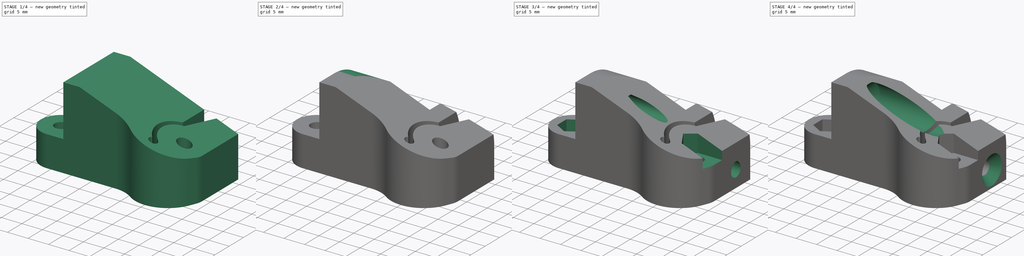
[diagram: build sequence overview — one tinted view per stage of 4, left to right]
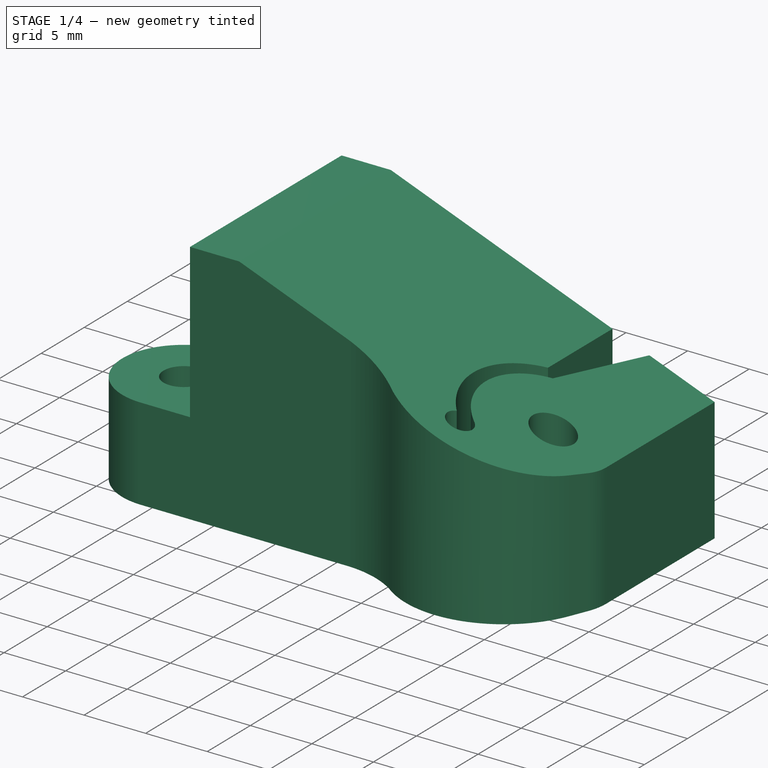
[diagram: stage 1 of 4 — iso view after this stage's code; geometry added in this stage tinted green]
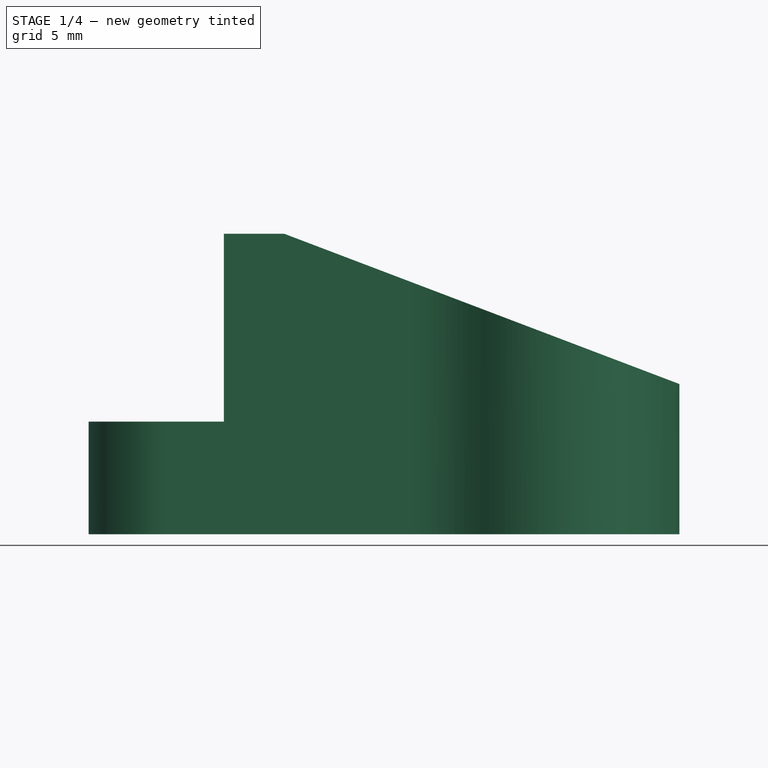
[diagram: stage 1 of 4 — front view after this stage's code; geometry added in this stage tinted green]
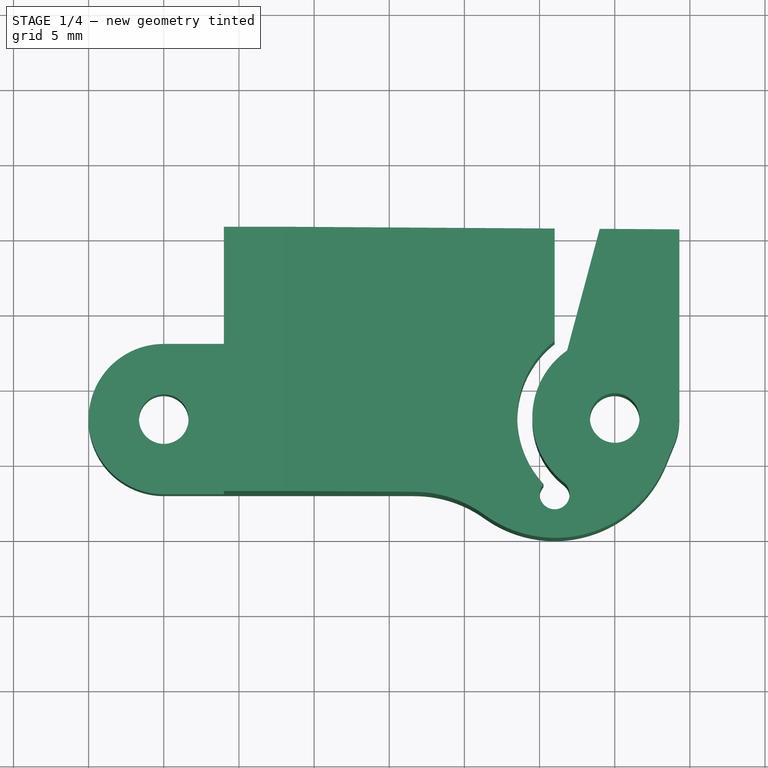
[diagram: stage 1 of 4 — top view after this stage's code; geometry added in this stage tinted green]
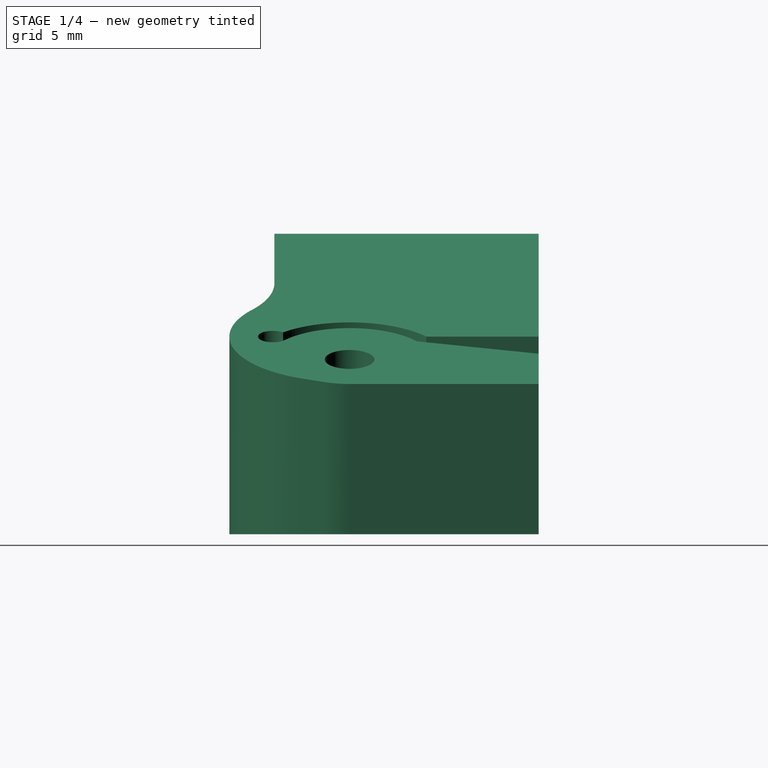
[diagram: stage 1 of 4 — right view after this stage's code; geometry added in this stage tinted green]
FCSTD DOCUMENT  (FreeCAD 0.17R13541 (Git))
Label: 14_407_z-runner-mount
License: All rights reserved
LicenseURL: http://en.wikipedia.org/wiki/All_rights_reserved
objects: Sketcher::SketchObject×13, PartDesign::Pocket×6, PartDesign::SubtractiveLoft×2, Spreadsheet::Sheet×1, PartDesign::Pad×1, PartDesign::Body×1
note: 32 computed .brp shape members not serialized (recipe doc carries the construction recipe); baked Part::Feature solids carry a one-line shape summary decoded from their .brp

FEATURE [Spreadsheet::Sheet] Spreadsheet  label="sheet1"
  cells = A1=max_x; B1(max_x)=39.299999999999997; C1=(min on stl = 0.35); A2=max_y; B2(max_y)=20.579999999999998; C2=(min on stl = 0.1); A3=max_z; B3(max_z)=20; C3=(min on stl = 0.2); A4=bearing_1_x; B4(bearing_1_x)=5; A5=bearing_1_y; B5(bearing_1_y)=8; A6=bearing_1_nuttrap_z; B6(bearing_1_nuttrap_z)=3; A7=bearing_2_x; B7(bearing_2_x)=35; A8=bearing_2_y; B8(bearing_2_y)=8; A9=bearing_2_nuttrap_z; B9(bearing_2_nuttrap_z)=8; A10=mount_bolt_1_y; B10(mount_bolt_1_y)=15.6; A11=mount_bolt_1_z; B11(mount_bolt_1_z)=4; A12=mount_bolt_2_y; B12(mount_bolt_2_y)=8; A13=mount_bolt_2_z; B13(mount_bolt_2_z)=16; A14=mount_bolt_2_countersink_dx; B14(mount_bolt_2_countersink_dx)=1.8; A15=mount_bolt_2_countersink_ix; B15(mount_bolt_2_countersink_ix)=14.65; C15=(major diameter location); A16=pinch_bolt_y; B16(pinch_bolt_y)=15.6; A17=pinch_bolt_z; B17(pinch_bolt_z)=4; A18=pinch_bolt_countersink_dx; B18(pinch_bolt_countersink_dx)=1.5; A19=pinch_bolt_countersink_ix; B19(pinch_bolt_countersink_ix)=39.299999999999997; A20=m3_clearance; B20(m3_clearance)=3.2999999999999998; A21=m3_nut_trap; B21(m3_nut_trap)=5.5999999999999996; A22=flex_cut_major_rad; B22(flex_cut_major_rad)=5.4000000000000004; C22=(on moving part, smaller rad); A23=flex_cut_stophole_dia; B23(flex_cut_stophole_dia)=2; A24=flex_cut_stophole_x; B24(flex_cut_stophole_x)=31; A25=flex_cut_gap; B25(flex_cut_gap)=1; A26=flex_cut_stop_x; B26(flex_cut_stop_x)=31.199999999999999; A27=flex_cut_foot_angle_to_vert; B27(flex_cut_foot_angle_to_vert)=13.800000000000001
FEATURE [Sketcher::SketchObject] Sketch
  MapMode = 5
  Support = -> [XY_Plane]
  expr: Constraints[60] = sheet1.flex_cut_stophole_x
  expr: Constraints[30] = sheet1.flex_cut_stophole_dia / 2
  expr: Constraints[21] = sheet1.max_y
  expr: Constraints[20] = sheet1.max_x
  expr: Constraints[5] = sheet1.bearing_2_y
  expr: Constraints[2] = sheet1.bearing_1_x
  expr: Constraints[4] = sheet1.bearing_1_y
  expr: Constraints[3] = sheet1.bearing_2_x
  expr: Constraints[1] = sheet1.m3_clearance / 2
  sketch-geometry (23):
    g0: Circle CenterX=5 CenterY=8 CenterZ=0 NormalX=0 NormalY=0 NormalZ=1 AngleXU=0 Radius=1.65
    g1: Circle CenterX=35 CenterY=8 CenterZ=0 NormalX=0 NormalY=0 NormalZ=1 AngleXU=0 Radius=1.65
    g2: ArcOfCircle CenterX=5 CenterY=8 CenterZ=0 NormalX=0 NormalY=0 NormalZ=1 AngleXU=0 Radius=5 StartAngle=1.5708 EndAngle=4.71239
    g3: LineSegment StartX=5 StartY=13 StartZ=0 EndX=9 EndY=13 EndZ=0
    g4: LineSegment StartX=9 StartY=13 StartZ=0 EndX=9 EndY=20.58 EndZ=0
    g5: LineSegment StartX=9 StartY=20.58 StartZ=0 EndX=31 EndY=20.58 EndZ=0
    g6: LineSegment StartX=31 StartY=20.58 StartZ=0 EndX=31 EndY=13.1 EndZ=0
    g7: LineSegment StartX=5 StartY=3 StartZ=0 EndX=21.6726 EndY=3 EndZ=0
    g8: LineSegment StartX=31.8325 StartY=12.4737 StartZ=0 EndX=34 EndY=20.58 EndZ=0
    g9: LineSegment StartX=34 StartY=20.58 StartZ=0 EndX=39.3 EndY=20.58 EndZ=0
    g10: LineSegment StartX=39.3 StartY=20.58 StartZ=0 EndX=39.3 EndY=8 EndZ=0
    g11: ArcOfCircle CenterX=35 CenterY=8 CenterZ=0 NormalX=0 NormalY=0 NormalZ=1 AngleXU=0 Radius=5.48151 StartAngle=2.18688 EndAngle=4.04729
    g12: ArcOfCircle CenterX=31 CenterY=2.9 CenterZ=0 NormalX=0 NormalY=0 NormalZ=1 AngleXU=0 Radius=1 StartAngle=2.39927 EndAngle=7.18888
    g13: ArcOfCircle CenterX=35 CenterY=8 CenterZ=0 NormalX=0 NormalY=0 NormalZ=1 AngleXU=0 Radius=6.48151 StartAngle=2.2359 EndAngle=3.89285
    g14: ArcOfCircle CenterX=21.6726 CenterY=-5 CenterZ=0 NormalX=0 NormalY=0 NormalZ=1 AngleXU=0 Radius=8 StartAngle=0.948428 EndAngle=1.5708
    g15: ArcOfCircle CenterX=31 CenterY=8 CenterZ=0 NormalX=0 NormalY=0 NormalZ=1 AngleXU=0 Radius=8 StartAngle=4.09002 EndAngle=5.89342
    g16: ArcOfCircle CenterX=35 CenterY=8 CenterZ=0 NormalX=0 NormalY=0 NormalZ=1 AngleXU=0 Radius=4.3 StartAngle=5.89342 EndAngle=6.28319
    g17: LineSegment StartX=38.4 StartY=4.96026 StartZ=0 EndX=38.9775 EndY=6.36614 EndZ=0
    g18: LineSegment [constr] StartX=31 StartY=0 StartZ=0 EndX=31 EndY=30 EndZ=0
    g19: LineSegment [constr] StartX=35 StartY=8 StartZ=0 EndX=0 EndY=8 EndZ=0
    g20: GeomPoint X=28.5185 Y=8 Z=0
    g21: GeomPoint X=29.5185 Y=8 Z=0
    g22: LineSegment [constr] StartX=31 StartY=13.1 StartZ=0 EndX=32 EndY=13.1 EndZ=0
  constraints (63):
    c: Equal(g0,g1)
    c: Radius(g0) = 1.65
    c: DistanceX(g-2,g0) = 5
    c: DistanceX(g-2,g1) = 35
    c: DistanceY(g-1,g0) = 8
    c: DistanceY(g-1,g1) = 8
    c: Coincident(g2,g0)
    c: Tangent(g2,g-2)
    c: Coincident(g3,g4)
    c: Coincident(g4,g5)
    c: Coincident(g5,g6)
    c: Horizontal(g7)
    c: Horizontal(g3)
    c: Horizontal(g5)
    c: Tangent(g2,g3) = 1.5708
    c: Tangent(g2,g7) = -1.5708
    c: Coincident(g8,g9)
    c: Coincident(g9,g10)
    c: Horizontal(g9)
    c: Vertical(g10)
    c: DistanceX(g-2,g9) = 39.3
    c: DistanceY(g-1,g4) = 20.58
    c: PointOnObject(g8,g5)
    c: Coincident(g13,g11)
    c: Coincident(g13,g1)
    c: Coincident(g8,g11)
    c: Coincident(g13,g6)
    c: Coincident(g12,g13)
    c: Tangent(g12,g11) = 1.5708
    c: Tangent(g7,g14) = 1.5708
    c: Radius(g12) = 1
    c: Tangent(g15,g14) = 1.5708
    c: Tangent(g15,g17) = -1.5708
    c: Tangent(g17,g16) = -1.5708
    c: Tangent(g16,g10) = 1.5708
    c: Coincident(g16,g1)
    c: Tangent(g15,g-1)
    c: PointOnObject(g18,g-1)
    c: Vertical(g18)
    c: Distance(g18) = 30
    c: PointOnObject(g15,g18)
    c: PointOnObject(g12,g18)
    c: Coincident(g19,g1)
    c: Horizontal(g19)
    c: PointOnObject(g19,g-2)
    c: PointOnObject(g15,g19)
    c: Vertical(g6)
    c: PointOnObject(g5,g18)
    c: PointOnObject(g20,g19)
    c: PointOnObject(g20,g13)
    c: PointOnObject(g21,g19)
    c: PointOnObject(g21,g11)
    c: Distance(g20,g21) = 1
    c: Coincident(g22,g6)
    c: Horizontal(g22)
    c: PointOnObject(g22,g8)
    c: Distance(g22) = 1
    c: Distance(g5,g8) = 3
    c: DistanceX(g-2,g4) = 9
    c: Vertical(g4)
    c: DistanceX(g-2,g18) = 31
    c: DistanceY(g-1,g12) = 2.9
    c: Equal(g14,g15)
FEATURE [PartDesign::Pad] Pad
  Length = 20
  Length2 = 100
  Profile = -> Sketch
  Type = 0
  expr: Length = sheet1.max_z
FEATURE [Sketcher::SketchObject] Sketch001
  MapMode = 5
  Placement = pos=(0,0,0) rot=(1,0,0;1.5708rad)
  Support = -> [XZ_Plane]
  expr: Constraints[19] = sheet1.max_z + 1
  expr: Constraints[17] = sheet1.max_x
  expr: Constraints[16] = sheet1.max_z
  sketch-geometry (8):
    g0: LineSegment StartX=-1 StartY=7.5 StartZ=0 EndX=9 EndY=7.5 EndZ=0
    g1: LineSegment StartX=9 StartY=7.5 StartZ=0 EndX=9 EndY=20 EndZ=0
    g2: LineSegment StartX=9 StartY=20 StartZ=0 EndX=13 EndY=20 EndZ=0
    g3: LineSegment StartX=13 StartY=20 StartZ=0 EndX=39.3 EndY=10 EndZ=0
    g4: LineSegment StartX=39.3 StartY=10 StartZ=0 EndX=40.3 EndY=10 EndZ=0
    g5: LineSegment StartX=40.3 StartY=10 StartZ=0 EndX=40.3 EndY=21 EndZ=0
    g6: LineSegment StartX=40.3 StartY=21 StartZ=0 EndX=-1 EndY=21 EndZ=0
    g7: LineSegment StartX=-1 StartY=21 StartZ=0 EndX=-1 EndY=7.5 EndZ=0
  constraints (24):
    c: Coincident(g0,g1)
    c: Coincident(g1,g2)
    c: Coincident(g2,g3)
    c: Coincident(g3,g4)
    c: Horizontal(g4)
    c: Coincident(g4,g5)
    c: Vertical(g5)
    c: Coincident(g5,g6)
    c: Horizontal(g6)
    c: Coincident(g6,g7)
    c: Coincident(g0,g7)
    c: Vertical(g7)
    c: Vertical(g1)
    c: Horizontal(g0)
    c: Horizontal(g2)
    c: DistanceX(g-2,g0) = -1
    c: DistanceY(g-1,g1) = 20
    c: DistanceX(g-2,g3) = 39.3
    c: Distance(g4) = 1
    c: DistanceY(g-1,g6) = 21
    c: DistanceX(g-2,g1) = 9
    c: DistanceX(g-2,g2) = 13
    c: DistanceY(g-1,g0) = 7.5
    c: DistanceY(g-1,g4) = 10
FEATURE [PartDesign::Pocket] Pocket
  BaseFeature = -> Pad
  Length = 5
  Length2 = 100
  Profile = -> Sketch001
  Type = 1
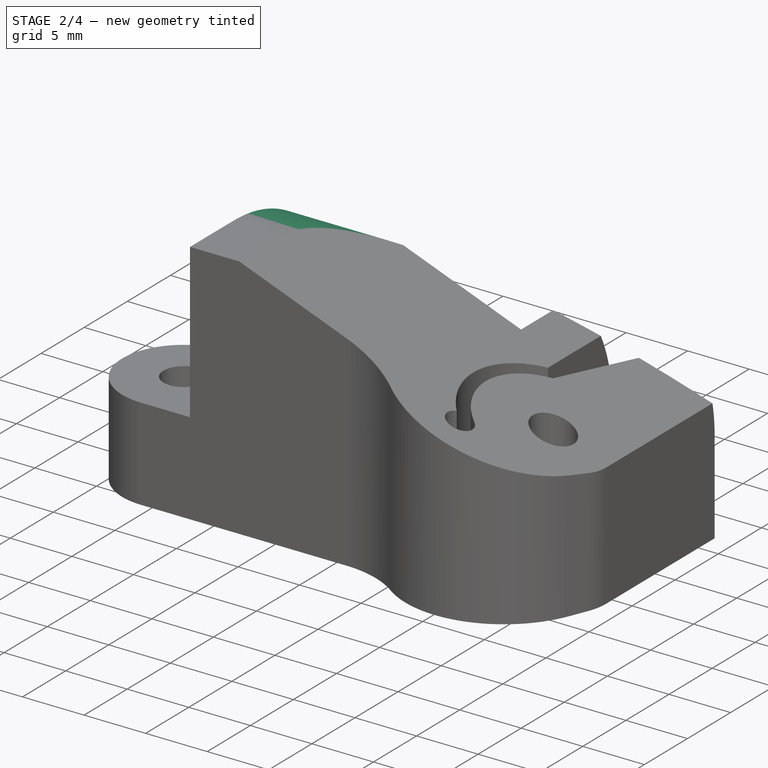
[diagram: stage 2 of 4 — iso view after this stage's code; geometry added in this stage tinted green]
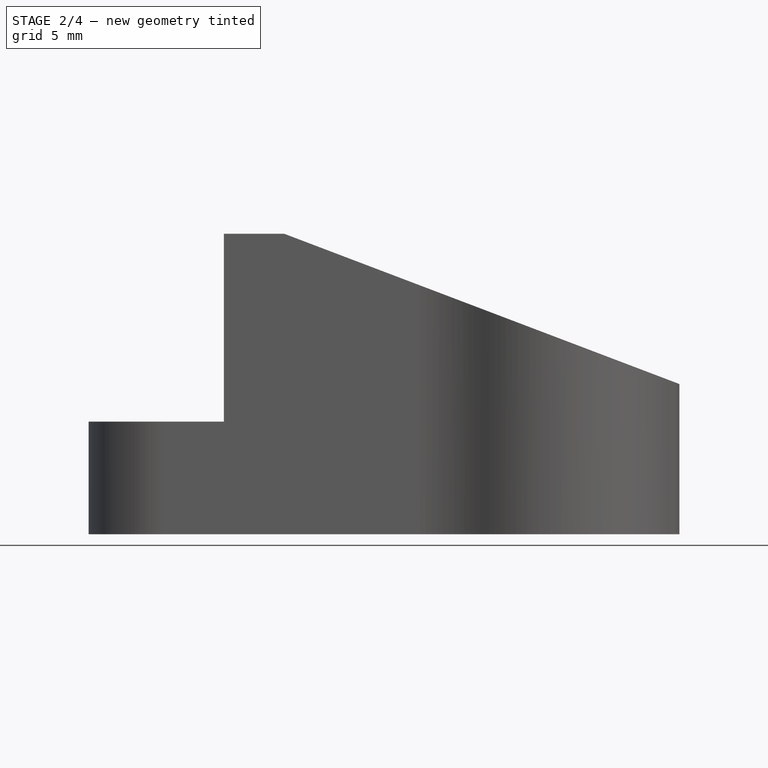
[diagram: stage 2 of 4 — front view after this stage's code; geometry added in this stage tinted green]
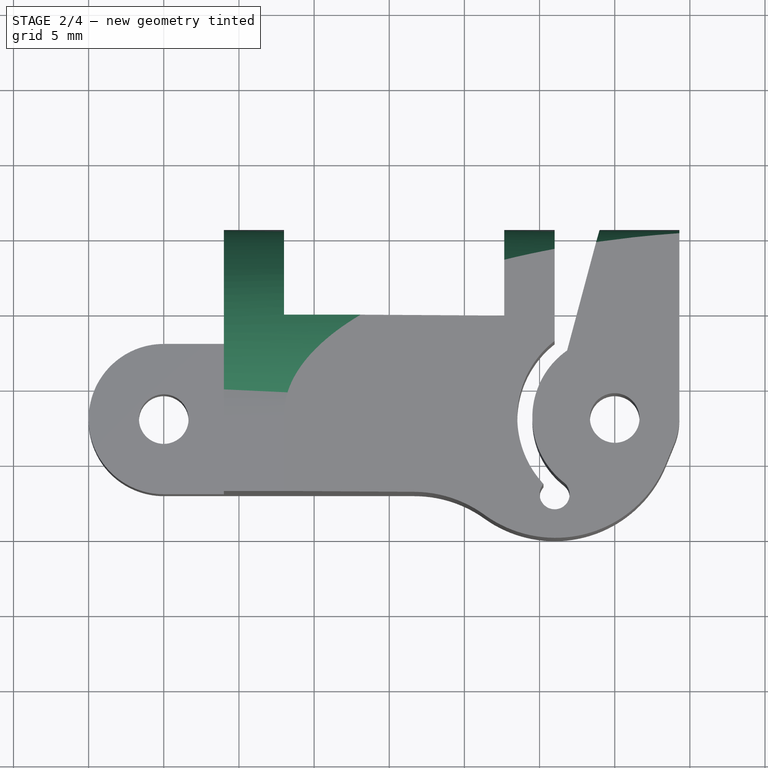
[diagram: stage 2 of 4 — top view after this stage's code; geometry added in this stage tinted green]
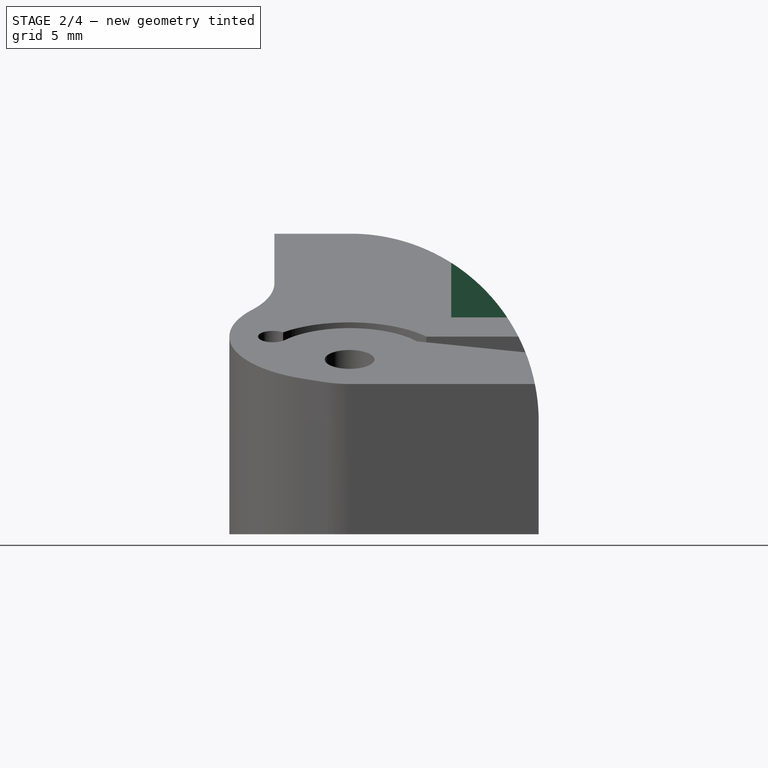
[diagram: stage 2 of 4 — right view after this stage's code; geometry added in this stage tinted green]
FEATURE [Sketcher::SketchObject] Sketch002
  MapMode = 5
  Placement = pos=(0,0,0) rot=(0.57735,0.57735,0.57735;2.0944rad)
  Support = -> [YZ_Plane]
  expr: Constraints[19] = sheet1.max_y + 1
  expr: Constraints[18] = sheet1.max_z + 1
  expr: Constraints[17] = sheet1.max_z
  expr: Constraints[1] = sheet1.max_y
  sketch-geometry (7):
    g0: ArcOfCircle CenterX=8.08 CenterY=7.5 CenterZ=0 NormalX=0 NormalY=0 NormalZ=1 AngleXU=0 Radius=12.5 StartAngle=0 EndAngle=1.5708
    g1: LineSegment StartX=20.58 StartY=7.5 StartZ=0 EndX=20.58 EndY=0 EndZ=0
    g2: LineSegment StartX=20.58 StartY=0 StartZ=0 EndX=21.58 EndY=0 EndZ=0
    g3: LineSegment StartX=21.58 StartY=0 StartZ=0 EndX=21.58 EndY=21 EndZ=0
    g4: LineSegment StartX=21.58 StartY=21 StartZ=0 EndX=0 EndY=21 EndZ=0
    g5: LineSegment StartX=0 StartY=21 StartZ=0 EndX=0 EndY=20 EndZ=0
    g6: LineSegment StartX=0 StartY=20 StartZ=0 EndX=8.08 EndY=20 EndZ=0
  constraints (20):
    c: DistanceY(g-1,g0) = 7.5
    c: DistanceX(g-2,g0) = 20.58
    c: PointOnObject(g1,g-1)
    c: Coincident(g1,g2)
    c: PointOnObject(g2,g-1)
    c: Coincident(g2,g3)
    c: Vertical(g3)
    c: Coincident(g3,g4)
    c: Horizontal(g4)
    c: Coincident(g4,g5)
    c: Coincident(g5,g6)
    c: Horizontal(g6)
    c: Vertical(g5)
    c: Vertical(g1)
    c: PointOnObject(g5,g-2)
    c: Tangent(g1,g0) = 1.5708
    c: Tangent(g6,g0) = 1.5708
    c: DistanceY(g-1,g5) = 20
    c: DistanceY(g-1,g4) = 21
    c: DistanceX(g-2,g2) = 21.58
FEATURE [PartDesign::Pocket] Pocket001
  BaseFeature = -> Pocket
  Length = 5
  Length2 = 100
  Profile = -> Sketch002
  Reversed = true
  Type = 1
FEATURE [Sketcher::SketchObject] Sketch003
  AttachmentOffset = pos=(0,0,13) rot=(0,0,1;0rad)
  MapMode = 5
  Placement = pos=(13,-1e-12,1e-12) rot=(0.57735,0.57735,0.57735;2.0944rad)
  Support = -> [YZ_Plane]
  expr: Constraints[18] = sheet1.m3_nut_trap
  expr: Constraints[36] = sheet1.mount_bolt_1_z
  expr: Constraints[17] = sheet1.mount_bolt_1_y
  expr: Constraints[35] = sheet1.max_y + 1
  expr: Constraints[33] = sheet1.max_z + 1
  sketch-geometry (13):
    g0: LineSegment [constr] StartX=17.8862 StartY=6.28619 StartZ=0 EndX=14.7632 EndY=7.12299 EndZ=0
    g1: LineSegment [constr] StartX=14.7632 StartY=7.12299 StartZ=0 EndX=12.477 EndY=4.8368 EndZ=0
    g2: LineSegment [constr] StartX=12.477 StartY=4.8368 StartZ=0 EndX=13.3138 EndY=1.71381 EndZ=0
    g3: LineSegment [constr] StartX=13.3138 StartY=1.71381 StartZ=0 EndX=16.4368 EndY=0.877006 EndZ=0
    g4: LineSegment [constr] StartX=16.4368 StartY=0.877006 StartZ=0 EndX=18.723 EndY=3.1632 EndZ=0
    g5: LineSegment [constr] StartX=18.723 StartY=3.1632 StartZ=0 EndX=17.8862 EndY=6.28619 EndZ=0
    g6: Circle [constr] CenterX=15.6 CenterY=4 CenterZ=0 NormalX=0 NormalY=0 NormalZ=1 AngleXU=0 Radius=3.23316
    g7: LineSegment StartX=12.477 StartY=4.8368 StartZ=0 EndX=14.041 EndY=-1 EndZ=0
    g8: LineSegment StartX=12.477 StartY=4.8368 StartZ=0 EndX=14.7632 EndY=7.12299 EndZ=0
    g9: LineSegment StartX=14.7632 StartY=7.12299 StartZ=0 EndX=14.7632 EndY=21 EndZ=0
    g10: LineSegment StartX=14.7632 StartY=21 StartZ=0 EndX=21.58 EndY=21 EndZ=0
    g11: LineSegment StartX=21.58 StartY=21 StartZ=0 EndX=21.58 EndY=-1 EndZ=0
    g12: LineSegment StartX=21.58 StartY=-1 StartZ=0 EndX=14.041 EndY=-1 EndZ=0
  constraints (33):
    c: Coincident(g0,g1)
    c: Coincident(g1,g2)
    c: Coincident(g2,g3)
    c: Coincident(g3,g4)
    c: Coincident(g4,g5)
    c: Coincident(g5,g0)
    c: Equal(g0, g1-g5) x5
    c: PointOnObject(g0,g6)
    c: PointOnObject(g1,g6)
    c: PointOnObject(g2,g6)
    c: PointOnObject(g3,g6)
    c: PointOnObject(g4,g6)
    c: PointOnObject(g5,g6)
    c: DistanceX(g-2,g6) = 15.6
    c: Distance(g0,g4) = 5.6
    c: Angle(g1,g-1) = 2.35619
    c: Coincident(g8,g9)
    c: Coincident(g9,g10)
    c: Coincident(g10,g11)
    c: Coincident(g11,g12)
    c: Horizontal(g12)
    c: Horizontal(g10)
    c: Vertical(g9)
    c: Vertical(g11)
    c: Coincident(g12,g7)
    c: Coincident(g7,g1)
    c: Coincident(g8,g1)
    c: PointOnObject(g7,g2)
    c: DistanceY(g-1,g11) = -1
    c: DistanceY(g-1,g10) = 21
    c: Coincident(g8,g0)
    c: DistanceX(g-2,g10) = 21.58
    c: DistanceY(g-1,g6) = 4
FEATURE [PartDesign::Pocket] Pocket002
  BaseFeature = -> Pocket001
  Length = 14.65
  Length2 = 100
  Profile = -> Sketch003
  Reversed = true
  Type = 0
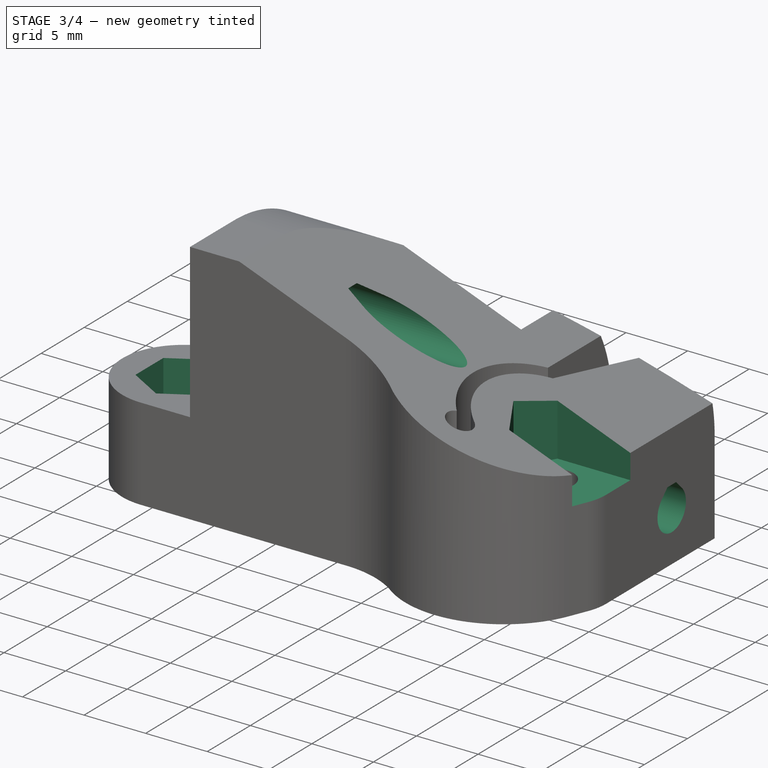
[diagram: stage 3 of 4 — iso view after this stage's code; geometry added in this stage tinted green]
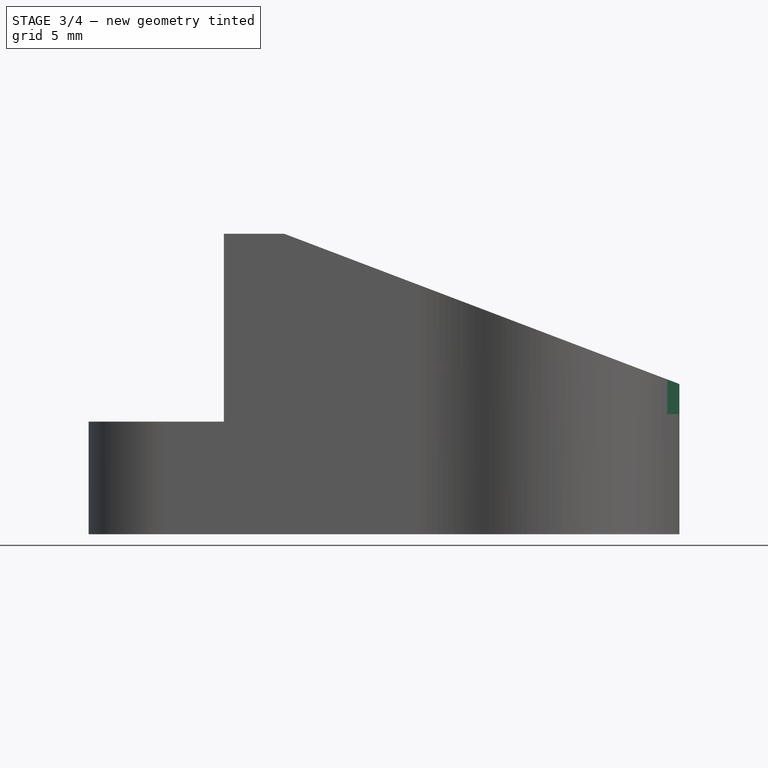
[diagram: stage 3 of 4 — front view after this stage's code; geometry added in this stage tinted green]
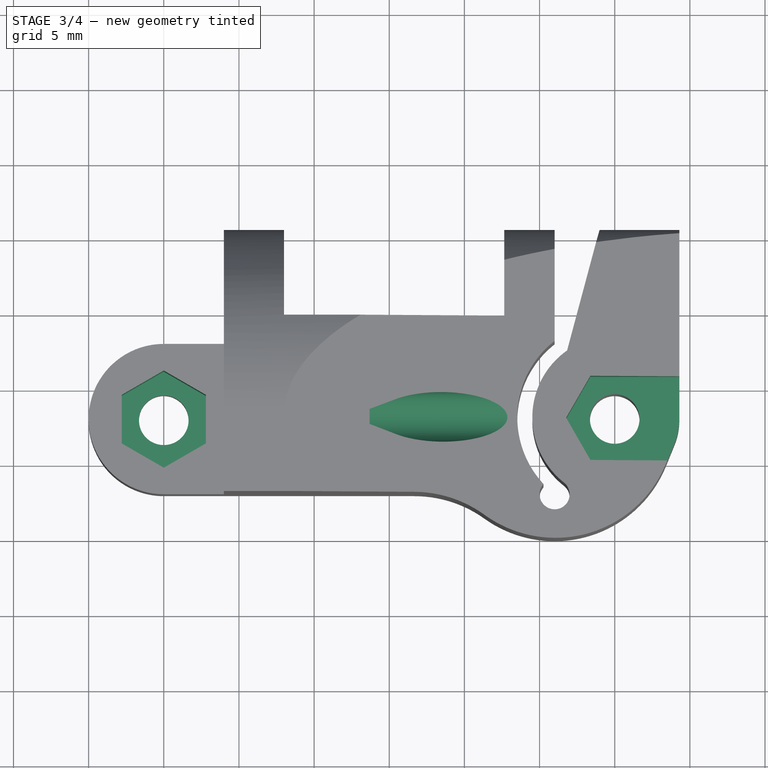
[diagram: stage 3 of 4 — top view after this stage's code; geometry added in this stage tinted green]
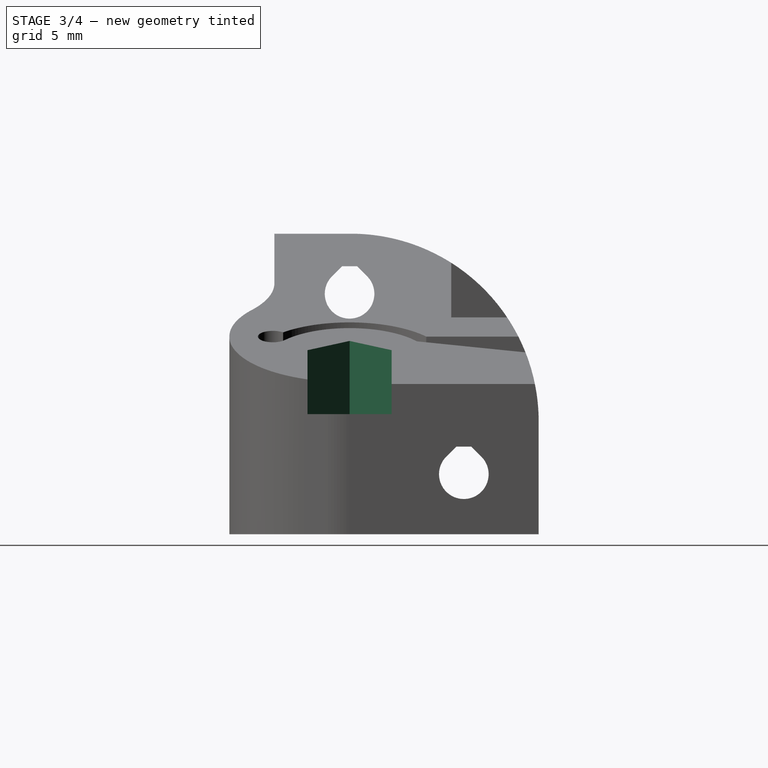
[diagram: stage 3 of 4 — right view after this stage's code; geometry added in this stage tinted green]
FEATURE [Sketcher::SketchObject] Sketch004
  AttachmentOffset = pos=(0,0,3) rot=(0,0,1;0rad)
  MapMode = 5
  Placement = pos=(0,0,3) rot=(0,0,1;0rad)
  Support = -> [XY_Plane]
  expr: AttachmentOffset.Base.z = sheet1.bearing_1_nuttrap_z
  expr: Constraints[20] = sheet1.bearing_1_y
  expr: Constraints[19] = sheet1.bearing_1_x
  expr: Constraints[18] = sheet1.m3_nut_trap
  sketch-geometry (7):
    g0: LineSegment StartX=2.2 StartY=9.61658 StartZ=0 EndX=2.2 EndY=6.38342 EndZ=0
    g1: LineSegment StartX=2.2 StartY=6.38342 StartZ=0 EndX=5 EndY=4.76684 EndZ=0
    g2: LineSegment StartX=5 StartY=4.76684 StartZ=0 EndX=7.8 EndY=6.38342 EndZ=0
    g3: LineSegment StartX=7.8 StartY=6.38342 StartZ=0 EndX=7.8 EndY=9.61658 EndZ=0
    g4: LineSegment StartX=7.8 StartY=9.61658 StartZ=0 EndX=5 EndY=11.2332 EndZ=0
    g5: LineSegment StartX=5 StartY=11.2332 StartZ=0 EndX=2.2 EndY=9.61658 EndZ=0
    g6: Circle [constr] CenterX=5 CenterY=8 CenterZ=0 NormalX=0 NormalY=0 NormalZ=1 AngleXU=0 Radius=3.23316
  constraints (17):
    c: Coincident(g0,g1)
    c: Coincident(g1,g2)
    c: Coincident(g2,g3)
    c: Coincident(g3,g4)
    c: Coincident(g4,g5)
    c: Coincident(g5,g0)
    c: Equal(g0, g1-g5) x5
    c: PointOnObject(g0,g6)
    c: PointOnObject(g1,g6)
    c: PointOnObject(g2,g6)
    c: PointOnObject(g3,g6)
    c: PointOnObject(g4,g6)
    c: PointOnObject(g5,g6)
    c: Vertical(g0)
    c: Distance(g3,g0) = 5.6
    c: DistanceX(g-2,g6) = 5
    c: DistanceY(g-1,g6) = 8
FEATURE [PartDesign::Pocket] Pocket003
  BaseFeature = -> Pocket002
  Length = 5
  Length2 = 100
  Profile = -> Sketch004
  Reversed = true
  Type = 1
FEATURE [Sketcher::SketchObject] Sketch005
  AttachmentOffset = pos=(0,0,8) rot=(0,0,1;0rad)
  MapMode = 5
  Placement = pos=(0,0,8) rot=(0,0,1;0rad)
  Support = -> [XY_Plane]
  expr: AttachmentOffset.Base.z = sheet1.bearing_2_nuttrap_z
  expr: Constraints[28] = sheet1.max_x + 1
  expr: Constraints[20] = sheet1.m3_nut_trap
  expr: Constraints[18] = sheet1.bearing_2_y
  expr: Constraints[17] = sheet1.bearing_2_x
  sketch-geometry (10):
    g0: LineSegment [constr] StartX=36.6166 StartY=10.8 StartZ=0 EndX=33.3834 EndY=10.8 EndZ=0
    g1: LineSegment StartX=33.3834 StartY=10.8 StartZ=0 EndX=31.7668 EndY=8 EndZ=0
    g2: LineSegment StartX=31.7668 StartY=8 StartZ=0 EndX=33.3834 EndY=5.2 EndZ=0
    g3: LineSegment [constr] StartX=33.3834 StartY=5.2 StartZ=0 EndX=36.6166 EndY=5.2 EndZ=0
    g4: LineSegment [constr] StartX=36.6166 StartY=5.2 StartZ=0 EndX=38.2332 EndY=8 EndZ=0
    g5: LineSegment [constr] StartX=38.2332 StartY=8 StartZ=0 EndX=36.6166 EndY=10.8 EndZ=0
    g6: Circle [constr] CenterX=35 CenterY=8 CenterZ=0 NormalX=0 NormalY=0 NormalZ=1 AngleXU=0 Radius=3.23316
    g7: LineSegment StartX=33.3834 StartY=10.8 StartZ=0 EndX=40.3 EndY=10.8 EndZ=0
    g8: LineSegment StartX=40.3 StartY=10.8 StartZ=0 EndX=40.3 EndY=5.2 EndZ=0
    g9: LineSegment StartX=40.3 StartY=5.2 StartZ=0 EndX=33.3834 EndY=5.2 EndZ=0
  constraints (25):
    c: Coincident(g0,g1)
    c: Coincident(g1,g2)
    c: Coincident(g2,g3)
    c: Coincident(g3,g4)
    c: Coincident(g4,g5)
    c: Coincident(g5,g0)
    c: Equal(g0, g1-g5) x5
    c: PointOnObject(g0,g6)
    c: PointOnObject(g1,g6)
    c: PointOnObject(g2,g6)
    c: PointOnObject(g3,g6)
    c: PointOnObject(g4,g6)
    c: PointOnObject(g5,g6)
    c: DistanceX(g-2,g6) = 35
    c: DistanceY(g-1,g6) = 8
    c: Horizontal(g0)
    c: Distance(g0,g3) = 5.6
    c: Coincident(g7,g8)
    c: Coincident(g8,g9)
    c: Coincident(g7,g0)
    c: Coincident(g9,g2)
    c: Horizontal(g7)
    c: Horizontal(g9)
    c: Vertical(g8)
    c: DistanceX(g-2,g7) = 40.3
FEATURE [PartDesign::Pocket] Pocket004
  BaseFeature = -> Pocket003
  Length = 5
  Length2 = 100
  Profile = -> Sketch005
  Reversed = true
  Type = 1
FEATURE [Sketcher::SketchObject] Sketch006
  MapMode = 5
  Placement = pos=(0,0,0) rot=(0.57735,0.57735,0.57735;2.0944rad)
  Support = -> [YZ_Plane]
  expr: Constraints[21] = sheet1.mount_bolt_1_z
  expr: Constraints[20] = sheet1.mount_bolt_1_y
  expr: Constraints[19] = sheet1.mount_bolt_2_z
  expr: Constraints[18] = sheet1.mount_bolt_2_y
  expr: Constraints[14] = sheet1.m3_clearance / 2
  sketch-geometry (8):
    g0: ArcOfCircle CenterX=8 CenterY=16 CenterZ=0 NormalX=0 NormalY=0 NormalZ=1 AngleXU=0 Radius=1.65 StartAngle=2.35619 EndAngle=7.06858
    g1: ArcOfCircle CenterX=15.6 CenterY=4 CenterZ=0 NormalX=0 NormalY=0 NormalZ=1 AngleXU=0 Radius=1.65 StartAngle=2.35619 EndAngle=7.06858
    g2: LineSegment StartX=6.83327 StartY=17.1667 StartZ=0 EndX=7.5 EndY=17.8335 EndZ=0
    g3: LineSegment StartX=7.5 StartY=17.8335 StartZ=0 EndX=8.5 EndY=17.8335 EndZ=0
    g4: LineSegment StartX=8.5 StartY=17.8335 StartZ=0 EndX=9.16673 EndY=17.1667 EndZ=0
    g5: LineSegment StartX=14.4333 StartY=5.16673 StartZ=0 EndX=15.1 EndY=5.83345 EndZ=0
    g6: LineSegment StartX=15.1 StartY=5.83345 StartZ=0 EndX=16.1 EndY=5.83345 EndZ=0
    g7: LineSegment StartX=16.1 StartY=5.83345 StartZ=0 EndX=16.7667 EndY=5.16673 EndZ=0
  constraints (22):
    c: Coincident(g2,g3)
    c: Coincident(g3,g4)
    c: Coincident(g5,g6)
    c: Coincident(g6,g7)
    c: Tangent(g0,g2) = 1.5708
    c: Tangent(g0,g4) = 1.5708
    c: Tangent(g1,g5) = 1.5708
    c: Tangent(g1,g7) = 1.5708
    c: Horizontal(g3)
    c: Horizontal(g6)
    c: Equal(g2,g4)
    c: Equal(g4,g5)
    c: Equal(g5,g7)
    c: Equal(g3,g6)
    c: Radius(g0) = 1.65
    c: Equal(g0,g1)
    c: Distance(g2,g3) = 1
    c: Angle(g2,g3) = 2.35619
    c: DistanceX(g-2,g0) = 8
    c: DistanceY(g-1,g0) = 16
    c: DistanceX(g-2,g1) = 15.6
    c: DistanceY(g-1,g1) = 4
FEATURE [PartDesign::Pocket] Pocket005
  BaseFeature = -> Pocket004
  Length = 5
  Length2 = 100
  Profile = -> Sketch006
  Reversed = true
  Type = 1
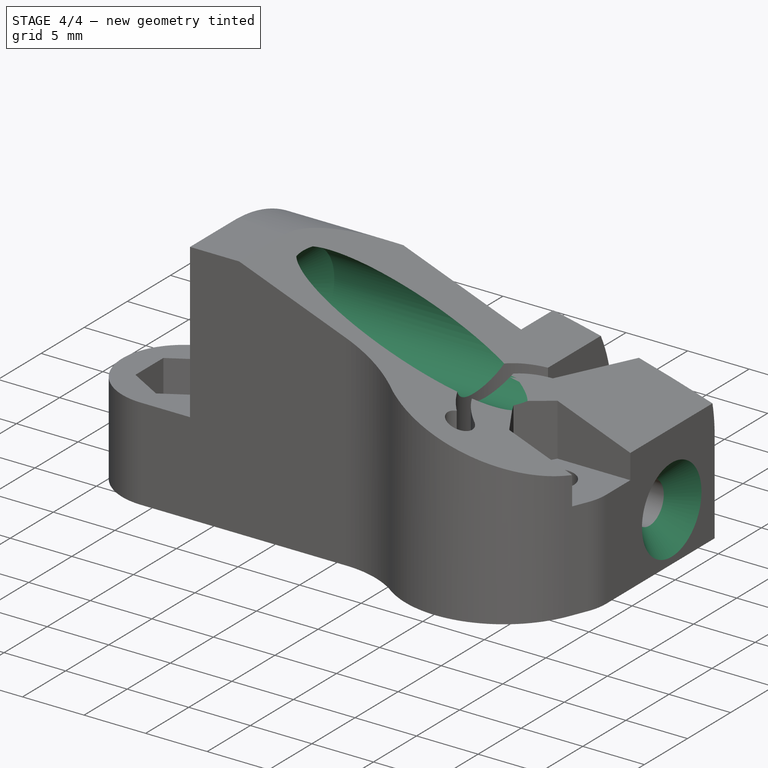
[diagram: stage 4 of 4 — iso view after this stage's code; geometry added in this stage tinted green]
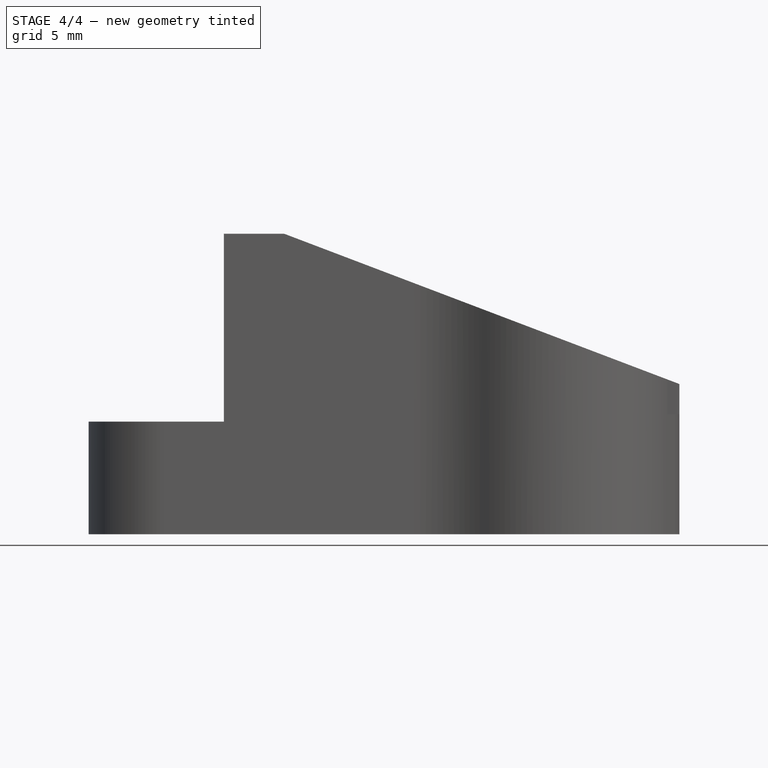
[diagram: stage 4 of 4 — front view after this stage's code; geometry added in this stage tinted green]
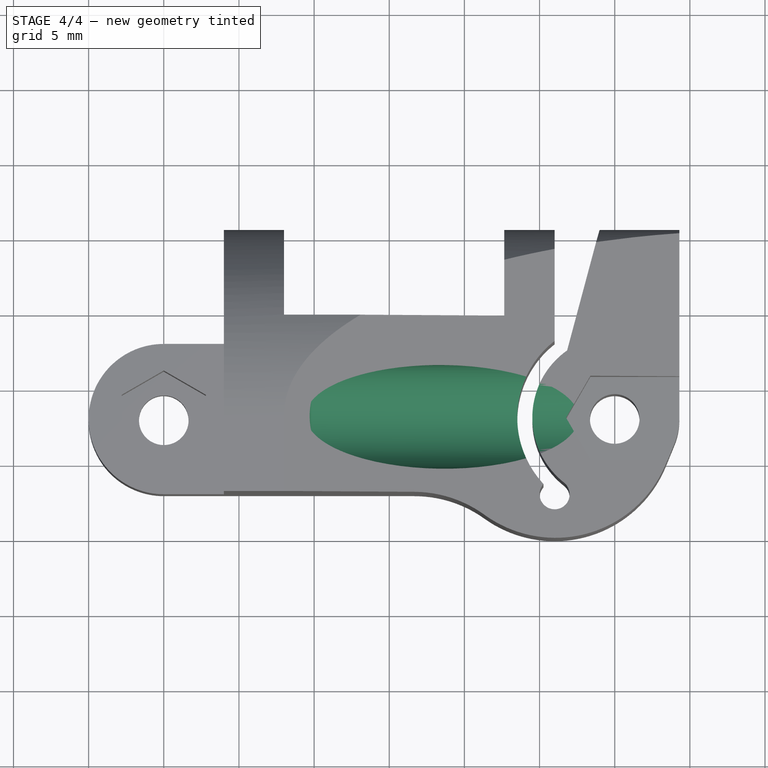
[diagram: stage 4 of 4 — top view after this stage's code; geometry added in this stage tinted green]
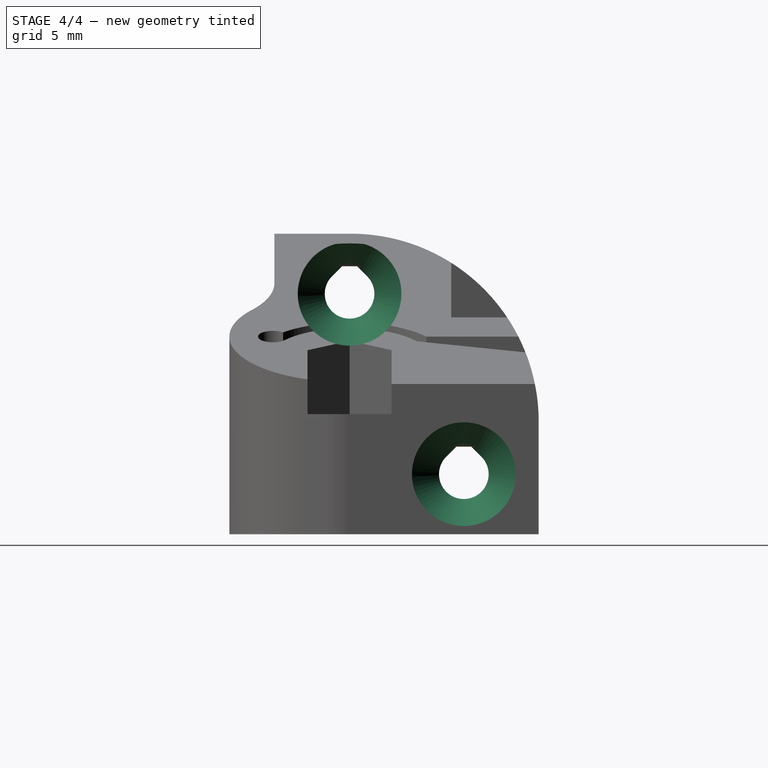
[diagram: stage 4 of 4 — right view after this stage's code; geometry added in this stage tinted green]
FEATURE [Sketcher::SketchObject] Sketch007
  AttachmentOffset = pos=(0,0,13) rot=(0,0,1;0rad)
  MapMode = 5
  Placement = pos=(13,-1e-12,1e-12) rot=(0.57735,0.57735,0.57735;2.0944rad)
  Support = -> [YZ_Plane]
  expr: Constraints[12] = sheet1.m3_clearance / 2
  expr: Constraints[9] = sheet1.mount_bolt_2_y
  expr: Constraints[10] = sheet1.mount_bolt_2_z
  expr: Constraints[6] = sheet1.m3_clearance / 2
  sketch-geometry (5):
    g0: ArcOfCircle [constr] CenterX=8 CenterY=16 CenterZ=0 NormalX=0 NormalY=0 NormalZ=1 AngleXU=0 Radius=1.65 StartAngle=2.35619 EndAngle=7.06858
    g1: LineSegment [constr] StartX=6.83327 StartY=17.1667 StartZ=0 EndX=7.5 EndY=17.8335 EndZ=0
    g2: LineSegment [constr] StartX=7.5 StartY=17.8335 StartZ=0 EndX=8.5 EndY=17.8335 EndZ=0
    g3: LineSegment [constr] StartX=8.5 StartY=17.8335 StartZ=0 EndX=9.16673 EndY=17.1667 EndZ=0
    g4: Circle CenterX=8 CenterY=16 CenterZ=0 NormalX=0 NormalY=0 NormalZ=1 AngleXU=0 Radius=1.65
  constraints (13):
    c: Coincident(g1,g2)
    c: Coincident(g2,g3)
    c: Tangent(g0,g1) = 1.5708
    c: Tangent(g0,g3) = 1.5708
    c: Horizontal(g2)
    c: Equal(g1,g3)
    c: Radius(g0) = 1.65
    c: Distance(g1,g2) = 1
    c: Angle(g1,g2) = 2.35619
    c: DistanceX(g-2,g0) = 8
    c: DistanceY(g-1,g0) = 16
    c: Coincident(g4,g0)
    c: Radius(g4) = 1.65
FEATURE [Sketcher::SketchObject] Sketch008
  AttachmentOffset = pos=(0,0,14.8) rot=(0,0,1;0rad)
  MapMode = 5
  Placement = pos=(14.8,-2e-12,2e-12) rot=(0.57735,0.57735,0.57735;2.0944rad)
  Support = -> [YZ_Plane]
  expr: AttachmentOffset.Base.z = 13 + sheet1.mount_bolt_2_countersink_dx
  expr: Constraints[12] = (sheet1.m3_clearance + 3.6000000000000001) / 2
  expr: Constraints[9] = sheet1.mount_bolt_2_y
  expr: Constraints[10] = sheet1.mount_bolt_2_z
  expr: Constraints[6] = sheet1.m3_clearance / 2
  sketch-geometry (5):
    g0: ArcOfCircle [constr] CenterX=8 CenterY=16 CenterZ=0 NormalX=0 NormalY=0 NormalZ=1 AngleXU=0 Radius=1.65 StartAngle=2.35619 EndAngle=7.06858
    g1: LineSegment [constr] StartX=6.83327 StartY=17.1667 StartZ=0 EndX=7.5 EndY=17.8335 EndZ=0
    g2: LineSegment [constr] StartX=7.5 StartY=17.8335 StartZ=0 EndX=8.5 EndY=17.8335 EndZ=0
    g3: LineSegment [constr] StartX=8.5 StartY=17.8335 StartZ=0 EndX=9.16673 EndY=17.1667 EndZ=0
    g4: Circle CenterX=8 CenterY=16 CenterZ=0 NormalX=0 NormalY=0 NormalZ=1 AngleXU=0 Radius=3.45
  constraints (13):
    c: Coincident(g1,g2)
    c: Coincident(g2,g3)
    c: Tangent(g0,g1) = 1.5708
    c: Tangent(g0,g3) = 1.5708
    c: Horizontal(g2)
    c: Equal(g1,g3)
    c: Radius(g0) = 1.65
    c: Distance(g1,g2) = 1
    c: Angle(g1,g2) = 2.35619
    c: DistanceX(g-2,g0) = 8
    c: DistanceY(g-1,g0) = 16
    c: Coincident(g4,g0)
    c: Radius(g4) = 3.45
FEATURE [Sketcher::SketchObject] Sketch009
  AttachmentOffset = pos=(0,0,39.3) rot=(0,0,1;0rad)
  MapMode = 5
  Placement = pos=(39.3,-4e-12,4e-12) rot=(0.57735,0.57735,0.57735;2.0944rad)
  Support = -> [YZ_Plane]
  expr: AttachmentOffset.Base.z = sheet1.max_x
  expr: Constraints[12] = (sheet1.m3_clearance + 3.6000000000000001) / 2
  expr: Constraints[9] = sheet1.mount_bolt_2_y
  expr: Constraints[10] = sheet1.mount_bolt_2_z
  expr: Constraints[6] = sheet1.m3_clearance / 2
  sketch-geometry (5):
    g0: ArcOfCircle [constr] CenterX=8 CenterY=16 CenterZ=0 NormalX=0 NormalY=0 NormalZ=1 AngleXU=0 Radius=1.65 StartAngle=2.35619 EndAngle=7.06858
    g1: LineSegment [constr] StartX=6.83327 StartY=17.1667 StartZ=0 EndX=7.5 EndY=17.8335 EndZ=0
    g2: LineSegment [constr] StartX=7.5 StartY=17.8335 StartZ=0 EndX=8.5 EndY=17.8335 EndZ=0
    g3: LineSegment [constr] StartX=8.5 StartY=17.8335 StartZ=0 EndX=9.16673 EndY=17.1667 EndZ=0
    g4: Circle CenterX=8 CenterY=16 CenterZ=0 NormalX=0 NormalY=0 NormalZ=1 AngleXU=0 Radius=3.45
  constraints (13):
    c: Coincident(g1,g2)
    c: Coincident(g2,g3)
    c: Tangent(g0,g1) = 1.5708
    c: Tangent(g0,g3) = 1.5708
    c: Horizontal(g2)
    c: Equal(g1,g3)
    c: Radius(g0) = 1.65
    c: Distance(g1,g2) = 1
    c: Angle(g1,g2) = 2.35619
    c: DistanceX(g-2,g0) = 8
    c: DistanceY(g-1,g0) = 16
    c: Coincident(g4,g0)
    c: Radius(g4) = 3.45
FEATURE [PartDesign::SubtractiveLoft] SubtractiveLoft
  BaseFeature = -> Pocket005
  Closed = true
  Profile = -> Sketch007
  Ruled = true
  Sections = -> [Sketch008,Sketch009]
FEATURE [Sketcher::SketchObject] Sketch010
  AttachmentOffset = pos=(0,0,37.5) rot=(0,0,1;0rad)
  MapMode = 5
  Placement = pos=(37.5,-4e-12,4e-12) rot=(0.57735,0.57735,0.57735;2.0944rad)
  Support = -> [YZ_Plane]
  expr: AttachmentOffset.Base.z = sheet1.max_x - sheet1.mount_bolt_2_countersink_dx
  expr: Constraints[12] = sheet1.m3_clearance / 2
  expr: Constraints[9] = sheet1.mount_bolt_1_y
  expr: Constraints[10] = sheet1.mount_bolt_1_z
  expr: Constraints[6] = sheet1.m3_clearance / 2
  sketch-geometry (5):
    g0: ArcOfCircle [constr] CenterX=15.6 CenterY=4 CenterZ=0 NormalX=0 NormalY=0 NormalZ=1 AngleXU=0 Radius=1.65 StartAngle=2.35619 EndAngle=7.06858
    g1: LineSegment [constr] StartX=14.4333 StartY=5.16673 StartZ=0 EndX=15.1 EndY=5.83345 EndZ=0
    g2: LineSegment [constr] StartX=15.1 StartY=5.83345 StartZ=0 EndX=16.1 EndY=5.83345 EndZ=0
    g3: LineSegment [constr] StartX=16.1 StartY=5.83345 StartZ=0 EndX=16.7667 EndY=5.16673 EndZ=0
    g4: Circle CenterX=15.6 CenterY=4 CenterZ=0 NormalX=0 NormalY=0 NormalZ=1 AngleXU=0 Radius=1.65
  constraints (13):
    c: Coincident(g1,g2)
    c: Coincident(g2,g3)
    c: Tangent(g0,g1) = 1.5708
    c: Tangent(g0,g3) = 1.5708
    c: Horizontal(g2)
    c: Equal(g1,g3)
    c: Radius(g0) = 1.65
    c: Distance(g1,g2) = 1
    c: Angle(g1,g2) = 2.35619
    c: DistanceX(g-2,g0) = 15.6
    c: DistanceY(g-1,g0) = 4
    c: Coincident(g4,g0)
    c: Radius(g4) = 1.65
FEATURE [Sketcher::SketchObject] Sketch011
  AttachmentOffset = pos=(0,0,39.3) rot=(0,0,1;0rad)
  MapMode = 5
  Placement = pos=(39.3,-4e-12,4e-12) rot=(0.57735,0.57735,0.57735;2.0944rad)
  Support = -> [YZ_Plane]
  expr: AttachmentOffset.Base.z = sheet1.max_x
  expr: Constraints[12] = (sheet1.m3_clearance + 3.6000000000000001) / 2
  expr: Constraints[9] = sheet1.mount_bolt_1_y
  expr: Constraints[10] = sheet1.mount_bolt_1_z
  expr: Constraints[6] = sheet1.m3_clearance / 2
  sketch-geometry (5):
    g0: ArcOfCircle [constr] CenterX=15.6 CenterY=4 CenterZ=0 NormalX=0 NormalY=0 NormalZ=1 AngleXU=0 Radius=1.65 StartAngle=2.35619 EndAngle=7.06858
    g1: LineSegment [constr] StartX=14.4333 StartY=5.16673 StartZ=0 EndX=15.1 EndY=5.83345 EndZ=0
    g2: LineSegment [constr] StartX=15.1 StartY=5.83345 StartZ=0 EndX=16.1 EndY=5.83345 EndZ=0
    g3: LineSegment [constr] StartX=16.1 StartY=5.83345 StartZ=0 EndX=16.7667 EndY=5.16673 EndZ=0
    g4: Circle CenterX=15.6 CenterY=4 CenterZ=0 NormalX=0 NormalY=0 NormalZ=1 AngleXU=0 Radius=3.45
  constraints (13):
    c: Coincident(g1,g2)
    c: Coincident(g2,g3)
    c: Tangent(g0,g1) = 1.5708
    c: Tangent(g0,g3) = 1.5708
    c: Horizontal(g2)
    c: Equal(g1,g3)
    c: Radius(g0) = 1.65
    c: Distance(g1,g2) = 1
    c: Angle(g1,g2) = 2.35619
    c: DistanceX(g-2,g0) = 15.6
    c: DistanceY(g-1,g0) = 4
    c: Coincident(g4,g0)
    c: Radius(g4) = 3.45
FEATURE [Sketcher::SketchObject] Sketch012
  AttachmentOffset = pos=(0,0,40.3) rot=(0,0,1;0rad)
  MapMode = 5
  Placement = pos=(40.3,-5e-12,5e-12) rot=(0.57735,0.57735,0.57735;2.0944rad)
  Support = -> [YZ_Plane]
  expr: AttachmentOffset.Base.z = sheet1.max_x + 1
  expr: Constraints[12] = (sheet1.m3_clearance + 3.6000000000000001) / 2
  expr: Constraints[9] = sheet1.mount_bolt_1_y
  expr: Constraints[10] = sheet1.mount_bolt_1_z
  expr: Constraints[6] = sheet1.m3_clearance / 2
  sketch-geometry (5):
    g0: ArcOfCircle [constr] CenterX=15.6 CenterY=4 CenterZ=0 NormalX=0 NormalY=0 NormalZ=1 AngleXU=0 Radius=1.65 StartAngle=2.35619 EndAngle=7.06858
    g1: LineSegment [constr] StartX=14.4333 StartY=5.16673 StartZ=0 EndX=15.1 EndY=5.83345 EndZ=0
    g2: LineSegment [constr] StartX=15.1 StartY=5.83345 StartZ=0 EndX=16.1 EndY=5.83345 EndZ=0
    g3: LineSegment [constr] StartX=16.1 StartY=5.83345 StartZ=0 EndX=16.7667 EndY=5.16673 EndZ=0
    g4: Circle CenterX=15.6 CenterY=4 CenterZ=0 NormalX=0 NormalY=0 NormalZ=1 AngleXU=0 Radius=3.45
  constraints (13):
    c: Coincident(g1,g2)
    c: Coincident(g2,g3)
    c: Tangent(g0,g1) = 1.5708
    c: Tangent(g0,g3) = 1.5708
    c: Horizontal(g2)
    c: Equal(g1,g3)
    c: Radius(g0) = 1.65
    c: Distance(g1,g2) = 1
    c: Angle(g1,g2) = 2.35619
    c: DistanceX(g-2,g0) = 15.6
    c: DistanceY(g-1,g0) = 4
    c: Coincident(g4,g0)
    c: Radius(g4) = 3.45
FEATURE [PartDesign::SubtractiveLoft] SubtractiveLoft001
  BaseFeature = -> SubtractiveLoft
  Closed = true
  Profile = -> Sketch010
  Ruled = true
  Sections = -> [Sketch011,Sketch012]
FEATURE [PartDesign::Body] Body
  Group = -> [Sketch,Pad,Sketch001,Pocket,Sketch002,Pocket001,Sketch003,Pocket002,Sketch004,Pocket003,Sketch005,Pocket004,Sketch006,Pocket005,Sketch007,Sketch008,Sketch009,SubtractiveLoft,Sketch010,Sketch011,Sketch012,SubtractiveLoft001]
  Origin = -> Origin
  Tip = -> SubtractiveLoft001
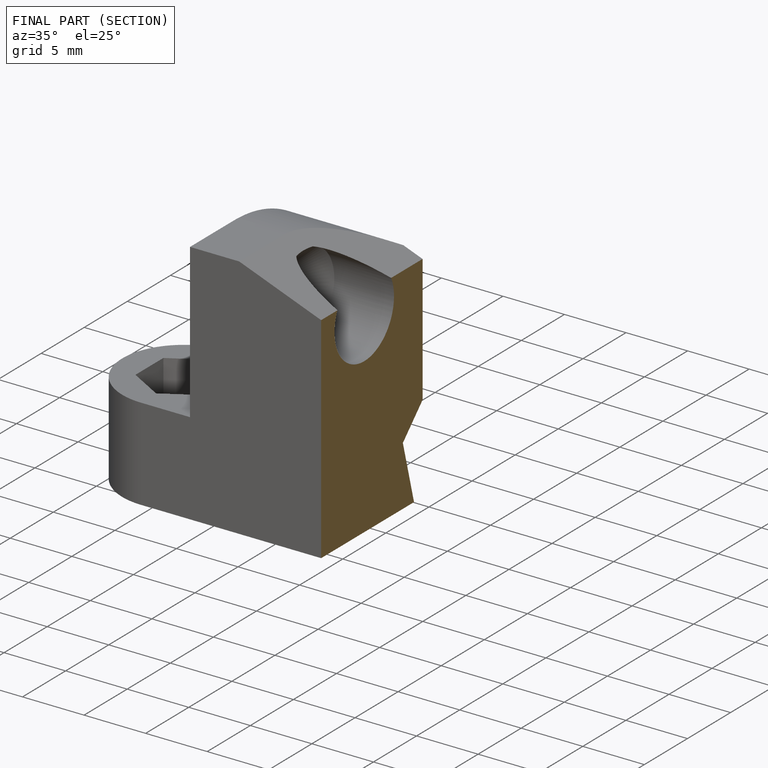
[diagram: finished part — half-section view (interior)]
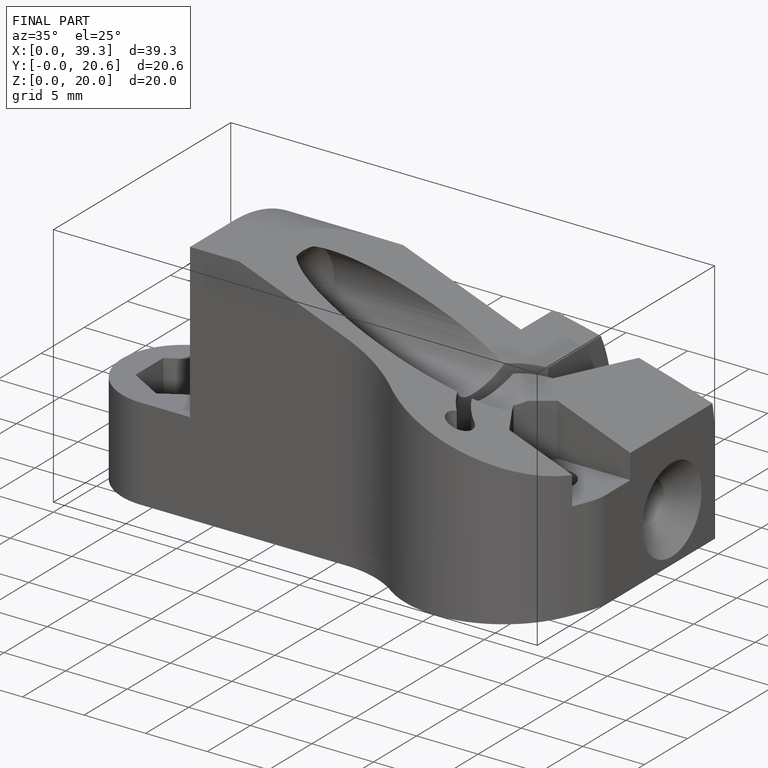
[diagram: finished part — iso view with bounding-box wireframe]
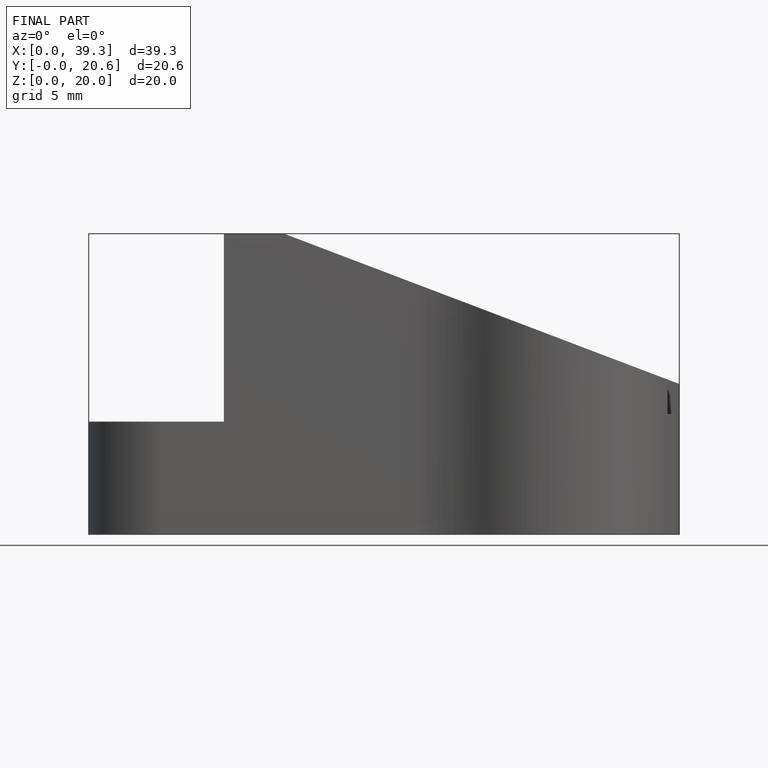
[diagram: finished part — front view with bounding-box wireframe]
